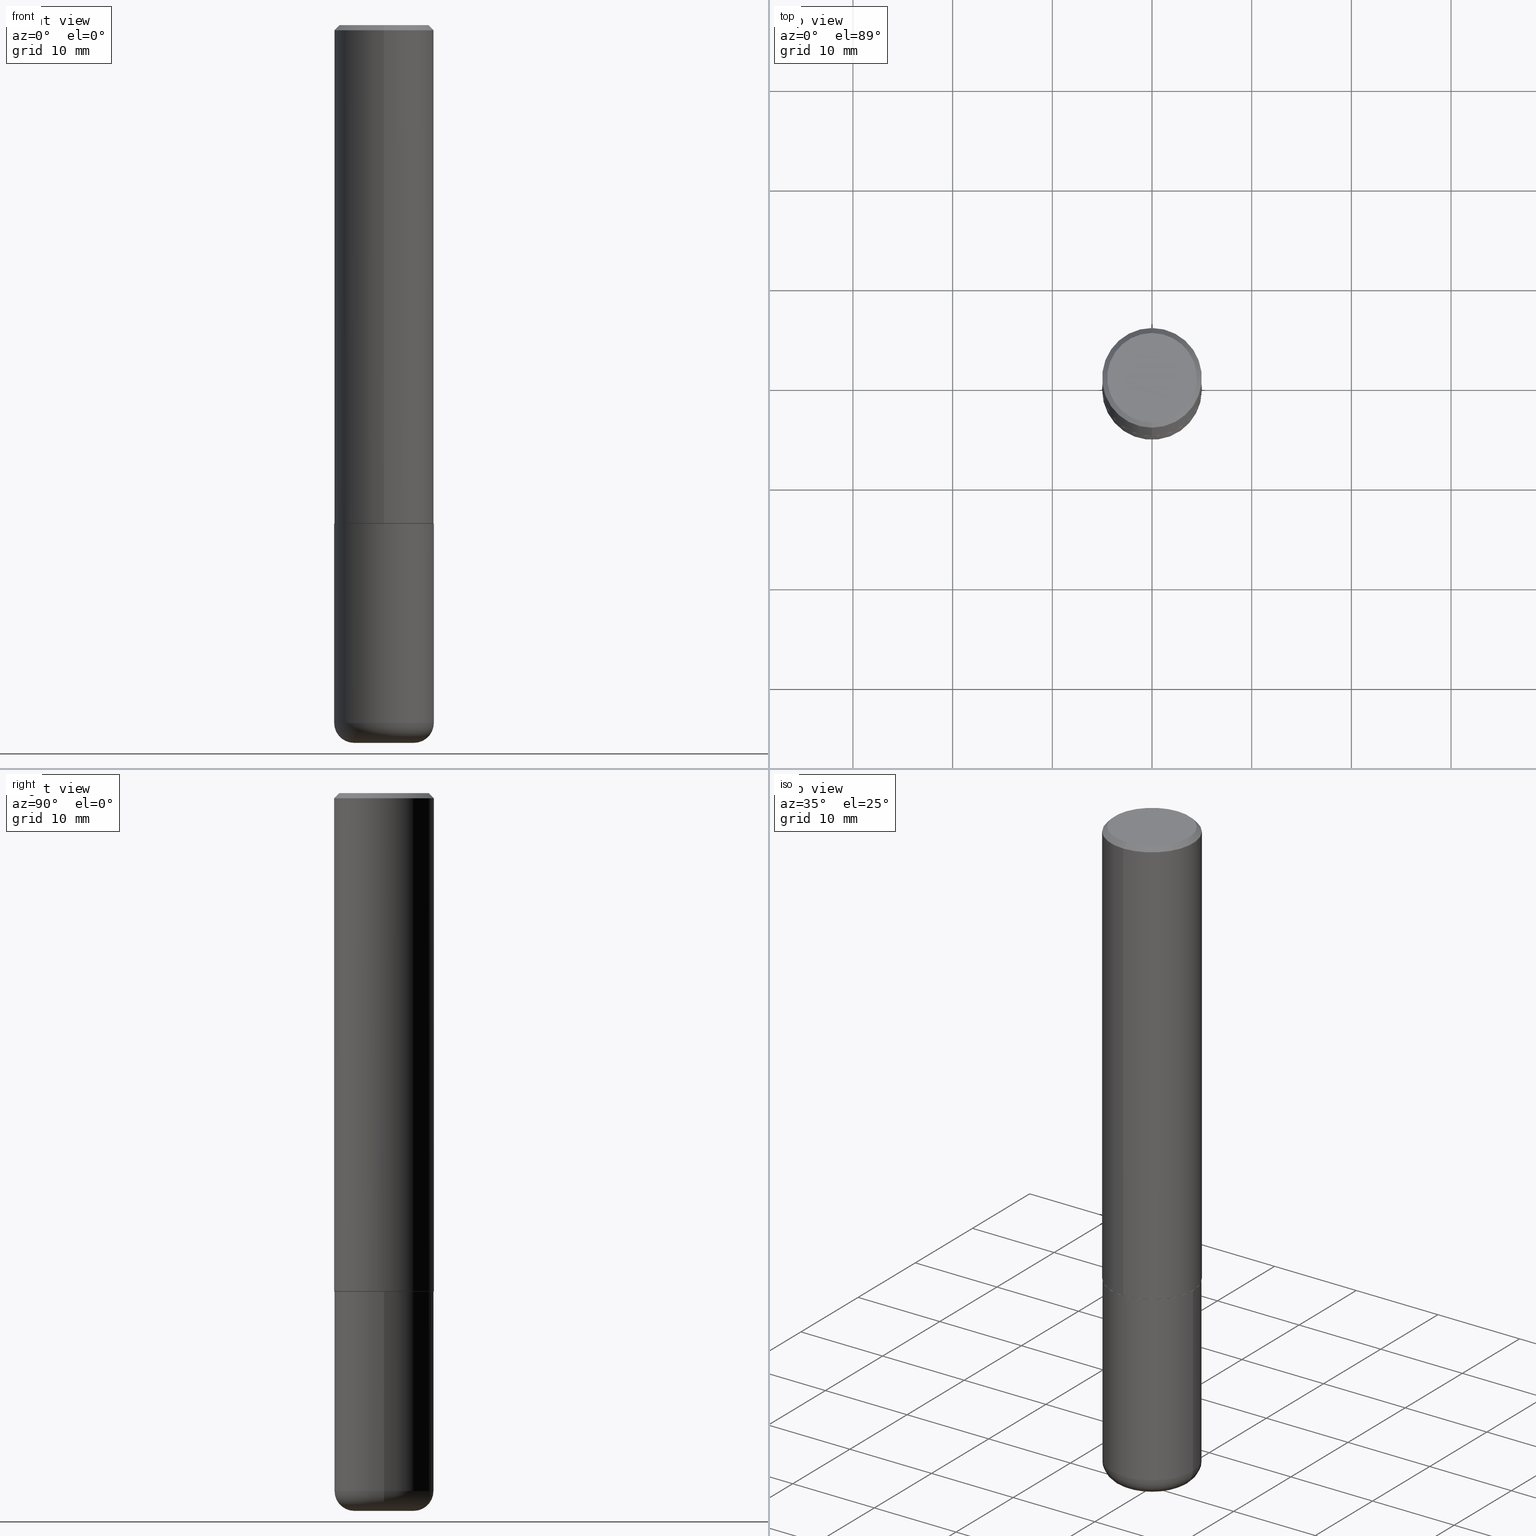
[diagram: canonical four-view strip — front | top / right | iso, engineering-drawing reading convention]
A machine part, canonical four-view strip (front | top / right | iso — engineering-drawing reading convention). The complete STEP part file that produces these views, byte-faithful:
ISO-10303-21;
HEADER;
FILE_DESCRIPTION (( 'STEP AP203' ),
    '1' );
FILE_NAME ('46459.STEP',
    '2024-03-04T21:38:46',
    ( '' ),
    ( '' ),
    'SwSTEP 2.0',
    'SolidWorks 2023',
    '' );
FILE_SCHEMA (( 'CONFIG_CONTROL_DESIGN' ));
ENDSEC;

DATA;
#1 = DIRECTION ( 'NONE',  ( 2.445768211810956051E-29, -3.491052572945861549E-15, -1.000000000000000000 ) ) ;
#2 = VERTEX_POINT ( 'NONE', #366 ) ;
#3 = CIRCLE ( 'NONE', #124, 0.1768499999999999794 ) ;
#4 = FACE_OUTER_BOUND ( 'NONE', #242, .T. ) ;
#5 = APPLICATION_PROTOCOL_DEFINITION ( 'international standard', 'config_control_design', 1994, #47 ) ;
#6 = ORIENTED_EDGE ( 'NONE', *, *, #323, .F. ) ;
#7 = CONICAL_SURFACE ( 'NONE', #244, 0.1968500000000000250, 0.7853981633974469467 ) ;
#8 = DIRECTION ( 'NONE',  ( 2.438088387897960049E-29, -3.491481338843145188E-15, -1.000000000000000000 ) ) ;
#9 = COORDINATED_UNIVERSAL_TIME_OFFSET ( 5, 0, .BEHIND. ) ;
#10 = CARTESIAN_POINT ( 'NONE',  ( 4.814494724949867130E-29, -6.872136989843927252E-15, -1.968499999999999694 ) ) ;
#11 = AXIS2_PLACEMENT_3D ( 'NONE', #319, #57, #378 ) ;
#12 = COORDINATED_UNIVERSAL_TIME_OFFSET ( 5, 0, .BEHIND. ) ;
#13 = DIRECTION ( 'NONE',  ( -1.000000000000000000, 6.982962677686265922E-15, -4.876176775795935793E-29 ) ) ;
#14 = DIRECTION ( 'NONE',  ( -2.445468806185136597E-29, 3.491481338843145583E-15, 1.000000000000000000 ) ) ;
#15 = DIRECTION ( 'NONE',  ( -4.851104656540957175E-15, -0.7071067811865490160, -0.7071067811865460184 ) ) ;
#16 = AXIS2_PLACEMENT_3D ( 'NONE', #310, #397, #372 ) ;
#17 = PLANE ( 'NONE',  #254 ) ;
#18 = DIRECTION ( 'NONE',  ( -2.445468806185136597E-29, 3.491481338843145583E-15, 1.000000000000000000 ) ) ;
#19 = DIRECTION ( 'NONE',  ( 2.445768211810956331E-29, -3.491052572945861944E-15, -1.000000000000000000 ) ) ;
#20 = CARTESIAN_POINT ( 'NONE',  ( -0.1181500000000000050, -8.782667179417266182E-15, -2.755900000000000016 ) ) ;
#21 = EDGE_LOOP ( 'NONE', ( #63, #65, #101, #384 ) ) ;
#22 = CYLINDRICAL_SURFACE ( 'NONE', #139, 0.1968500000000001082 ) ;
#23 = CIRCLE ( 'NONE', #75, 0.1958499999999999963 ) ;
#24 = VECTOR ( 'NONE', #243, 39.37007874015748143 ) ;
#25 = DIRECTION ( 'NONE',  ( -4.937700262164969294E-15, -0.7071067811866054154, 0.7071067811864896191 ) ) ;
#26 = ORIENTED_EDGE ( 'NONE', *, *, #415, .F. ) ;
#27 = VERTEX_POINT ( 'NONE', #72 ) ;
#28 = CONICAL_SURFACE ( 'NONE', #265, 0.1958499999999999963, 0.7853981633975336552 ) ;
#29 = ORIENTED_EDGE ( 'NONE', *, *, #79, .F. ) ;
#30 = LOCAL_TIME ( 16, 38, 46.00000000000000000, #120 ) ;
#31 = DIRECTION ( 'NONE',  ( -2.445768211810956331E-29, 3.491052572945861944E-15, 1.000000000000000000 ) ) ;
#32 = CARTESIAN_POINT ( 'NONE',  ( -0.1968499999999999694, 1.398703375343756999E-15, -9.682923725166782276E-30 ) ) ;
#33 = DIRECTION ( 'NONE',  ( -2.445768211810956331E-29, 3.491052572945861944E-15, 1.000000000000000000 ) ) ;
#34 = SHAPE_DEFINITION_REPRESENTATION ( #324, #356 ) ;
#35 = CARTESIAN_POINT ( 'NONE',  ( -1.367613240424807079E-15, -0.1958500000000068797, -1.968499999999999028 ) ) ;
#36 = ADVANCED_FACE ( 'NONE', ( #204 ), #365, .F. ) ;
#37 = CC_DESIGN_APPROVAL ( #392, ( #172 ) ) ;
#38 = CARTESIAN_POINT ( 'NONE',  ( -9.377267356501713356E-46, 1.338496966884566499E-31, 3.834078516196907338E-17 ) ) ;
#39 = EDGE_LOOP ( 'NONE', ( #170, #330, #110, #168 ) ) ;
#40 = COORDINATED_UNIVERSAL_TIME_OFFSET ( 5, 0, .BEHIND. ) ;
#41 = PLANE ( 'NONE',  #288 ) ;
#42 = ADVANCED_FACE ( 'NONE', ( #77 ), #28, .T. ) ;
#43 = VECTOR ( 'NONE', #379, 39.37007874015748143 ) ;
#44 = LOCAL_TIME ( 16, 38, 46.00000000000000000, #9 ) ;
#45 = CC_DESIGN_DATE_AND_TIME_ASSIGNMENT ( #360, #304, ( #172 ) ) ;
#46 = CARTESIAN_POINT ( 'NONE',  ( 4.891536423621923102E-31, -6.982105145891738778E-17, -0.02000000000000004205 ) ) ;
#47 = APPLICATION_CONTEXT ( 'configuration controlled 3d designs of mechanical parts and assemblies' ) ;
#48 = PERSON_AND_ORGANIZATION ( #86, #61 ) ;
#49 = DIRECTION ( 'NONE',  ( -6.982962677686265922E-15, -1.000000000000000000, 3.491052572945862338E-15 ) ) ;
#50 = DIRECTION ( 'NONE',  ( -2.445768211810956331E-29, 3.491052572945861549E-15, 1.000000000000000000 ) ) ;
#51 = CALENDAR_DATE ( 2024, 4, 3 ) ;
#52 = CARTESIAN_POINT ( 'NONE',  ( 6.739467482965618232E-29, -9.622173421717824390E-15, -2.755900000000000016 ) ) ;
#53 = DIRECTION ( 'NONE',  ( -6.982962677686265922E-15, -1.000000000000000000, 4.184602492209747448E-15 ) ) ;
#54 = DIMENSIONAL_EXPONENTS ( 1.000000000000000000, 0.000000000000000000, 0.000000000000000000, 0.000000000000000000, 0.000000000000000000, 0.000000000000000000, 0.000000000000000000 ) ;
#55 = CARTESIAN_POINT ( 'NONE',  ( -1.350489030861325429E-15, -0.1968500000000000805, -0.01999999999999935510 ) ) ;
#56 = DIRECTION ( 'NONE',  ( -2.445468806185136597E-29, 3.491481338843145583E-15, 1.000000000000000000 ) ) ;
#57 = DIRECTION ( 'NONE',  ( -2.445468806185136597E-29, 3.491481338843145583E-15, 1.000000000000000000 ) ) ;
#58 = ORIENTED_EDGE ( 'NONE', *, *, #401, .F. ) ;
#59 = EDGE_CURVE ( 'NONE', #418, #262, #305, .T. ) ;
#60 = CC_DESIGN_PERSON_AND_ORGANIZATION_ASSIGNMENT ( #402, #398, ( #134 ) ) ;
#61 = ORGANIZATION ( 'UNSPECIFIED', 'UNSPECIFIED', '' ) ;
#62 = ORIENTED_EDGE ( 'NONE', *, *, #328, .F. ) ;
#63 = ORIENTED_EDGE ( 'NONE', *, *, #232, .F. ) ;
#64 = CALENDAR_DATE ( 2024, 4, 3 ) ;
#65 = ORIENTED_EDGE ( 'NONE', *, *, #394, .T. ) ;
#66 = DIRECTION ( 'NONE',  ( -2.445768211810956331E-29, 3.491052572945861944E-15, 1.000000000000000000 ) ) ;
#67 = CIRCLE ( 'NONE', #380, 0.1968500000000002470 ) ;
#68 = ORIENTED_EDGE ( 'NONE', *, *, #210, .T. ) ;
#69 = AXIS2_PLACEMENT_3D ( 'NONE', #405, #247, #271 ) ;
#70 = ORIENTED_EDGE ( 'NONE', *, *, #85, .F. ) ;
#71 = ADVANCED_FACE ( 'NONE', ( #298 ), #335, .F. ) ;
#72 = CARTESIAN_POINT ( 'NONE',  ( -1.281884050883610492E-15, -0.1768499999999999794, 6.557334326874447708E-16 ) ) ;
#73 = PRODUCT_DEFINITION ( 'UNKNOWN', '', #134, #81 ) ;
#74 = DIRECTION ( 'NONE',  ( -1.000000000000000000, 6.982962677686265922E-15, -4.876176775795935793E-29 ) ) ;
#75 = AXIS2_PLACEMENT_3D ( 'NONE', #241, #66, #103 ) ;
#76 =( CONVERSION_BASED_UNIT ( 'INCH', #111 ) LENGTH_UNIT ( ) NAMED_UNIT ( #54 ) );
#77 = FACE_OUTER_BOUND ( 'NONE', #292, .T. ) ;
#78 = LINE ( 'NONE', #153, #308 ) ;
#79 = EDGE_CURVE ( 'NONE', #264, #233, #92, .T. ) ;
#80 = PERSON_AND_ORGANIZATION ( #86, #61 ) ;
#81 = DESIGN_CONTEXT ( 'detailed design', #307, 'design' ) ;
#82 = AXIS2_PLACEMENT_3D ( 'NONE', #203, #56, #200 ) ;
#83 = VECTOR ( 'NONE', #223, 39.37007874015748143 ) ;
#84 = DIRECTION ( 'NONE',  ( -2.445768211810956051E-29, 3.491052572945861549E-15, 1.000000000000000000 ) ) ;
#85 = EDGE_CURVE ( 'NONE', #27, #147, #133, .T. ) ;
#86 = PERSON ( 'UNSPECIFIED', 'UNSPECIFIED', 'UNSPECIFIED', ('UNSPECIFIED'), ('UNSPECIFIED'), ('UNSPECIFIED') ) ;
#87 = CARTESIAN_POINT ( 'NONE',  ( 1.398703375343782834E-15, 0.1968499999999934191, -1.967500000000000471 ) ) ;
#88 = CARTESIAN_POINT ( 'NONE',  ( 6.739467482965618232E-29, -9.622173421717824390E-15, -2.755900000000000016 ) ) ;
#89 = APPROVAL_DATE_TIME ( #182, #269 ) ;
#90 = CARTESIAN_POINT ( 'NONE',  ( 0.000000000000000000, 0.000000000000000000, 0.000000000000000000 ) ) ;
#91 = CARTESIAN_POINT ( 'NONE',  ( 1.398703375343757788E-15, 0.1968500000000001082, -6.872136989843933563E-16 ) ) ;
#92 = CIRCLE ( 'NONE', #338, 0.1968500000000000250 ) ;
#93 = CARTESIAN_POINT ( 'NONE',  ( 4.891536423621923102E-31, -6.982105145891738778E-17, -0.02000000000000004205 ) ) ;
#94 = ORIENTED_EDGE ( 'NONE', *, *, #251, .T. ) ;
#95 = FACE_OUTER_BOUND ( 'NONE', #371, .T. ) ;
#96 = CARTESIAN_POINT ( 'NONE',  ( 4.814494724949867130E-29, -6.872136989843927252E-15, -1.968499999999999694 ) ) ;
#97 = EDGE_LOOP ( 'NONE', ( #62, #171, #94, #26 ) ) ;
#98 = AXIS2_PLACEMENT_3D ( 'NONE', #367, #8, #74 ) ;
#99 = AXIS2_PLACEMENT_3D ( 'NONE', #284, #162, #121 ) ;
#100 = ORIENTED_EDGE ( 'NONE', *, *, #114, .F. ) ;
#101 = ORIENTED_EDGE ( 'NONE', *, *, #268, .T. ) ;
#102 = ORIENTED_EDGE ( 'NONE', *, *, #377, .T. ) ;
#103 = DIRECTION ( 'NONE',  ( -6.982962677686265922E-15, -1.000000000000000000, 4.184602492209747448E-15 ) ) ;
#104 = CIRCLE ( 'NONE', #375, 0.1968500000000000250 ) ;
#105 = EDGE_LOOP ( 'NONE', ( #174, #199 ) ) ;
#106 = CARTESIAN_POINT ( 'NONE',  ( 4.812048956738055591E-29, -6.868645937270982279E-15, -1.967499999999999805 ) ) ;
#107 = ADVANCED_FACE ( 'NONE', ( #4 ), #213, .T. ) ;
#108 = EDGE_CURVE ( 'NONE', #416, #262, #202, .T. ) ;
#109 = DATE_AND_TIME ( #64, #231 ) ;
#110 = ORIENTED_EDGE ( 'NONE', *, *, #108, .F. ) ;
#111 = LENGTH_MEASURE_WITH_UNIT ( LENGTH_MEASURE( 0.02539999999999999897 ), #395 );
#112 = ORIENTED_EDGE ( 'NONE', *, *, #140, .T. ) ;
#113 = APPROVAL_ROLE ( '' ) ;
#114 = EDGE_CURVE ( 'NONE', #27, #264, #138, .T. ) ;
#115 = CARTESIAN_POINT ( 'NONE',  ( 4.891536423621923102E-31, -6.982105145891738778E-17, -0.02000000000000004205 ) ) ;
#116 = SECURITY_CLASSIFICATION_LEVEL ( 'unclassified' ) ;
#117 = DIRECTION ( 'NONE',  ( 6.982962677686265133E-15, 1.000000000000000000, -3.491137977679279424E-15 ) ) ;
#118 = CC_DESIGN_APPROVAL ( #142, ( #73 ) ) ;
#119 = DIRECTION ( 'NONE',  ( 1.000000000000000000, -6.982962677686270655E-15, 4.883557194083114022E-29 ) ) ;
#120 = COORDINATED_UNIVERSAL_TIME_OFFSET ( 5, 0, .BEHIND. ) ;
#121 = DIRECTION ( 'NONE',  ( 1.000000000000000000, -6.982962677686266711E-15, 4.876176775795935793E-29 ) ) ;
#122 = FACE_OUTER_BOUND ( 'NONE', #39, .T. ) ;
#123 = CIRCLE ( 'NONE', #183, 0.1968499999999999694 ) ;
#124 = AXIS2_PLACEMENT_3D ( 'NONE', #38, #209, #333 ) ;
#125 = CARTESIAN_POINT ( 'NONE',  ( 1.374596203102542003E-15, 0.1968499999999999417, -0.02000000000000072900 ) ) ;
#126 = CC_DESIGN_PERSON_AND_ORGANIZATION_ASSIGNMENT ( #80, #191, ( #172 ) ) ;
#127 = ORIENTED_EDGE ( 'NONE', *, *, #268, .F. ) ;
#128 = LINE ( 'NONE', #91, #83 ) ;
#129 = VERTEX_POINT ( 'NONE', #350 ) ;
#130 = MANIFOLD_SOLID_BREP ( 'Body-Move/Copy2[2]', #315 ) ;
#131 = MANIFOLD_SOLID_BREP ( 'Body-Move/Copy2[1]', #299 ) ;
#132 = EDGE_LOOP ( 'NONE', ( #214, #68, #102, #166 ) ) ;
#133 = CIRCLE ( 'NONE', #368, 0.1768499999999999794 ) ;
#134 = PRODUCT_DEFINITION_FORMATION_WITH_SPECIFIED_SOURCE ( 'ANY', '', #353, .NOT_KNOWN. ) ;
#135 = ORIENTED_EDGE ( 'NONE', *, *, #394, .F. ) ;
#136 = ORIENTED_EDGE ( 'NONE', *, *, #401, .T. ) ;
#137 = COORDINATED_UNIVERSAL_TIME_OFFSET ( 5, 0, .BEHIND. ) ;
#138 = LINE ( 'NONE', #55, #355 ) ;
#139 = AXIS2_PLACEMENT_3D ( 'NONE', #90, #250, #354 ) ;
#140 = EDGE_CURVE ( 'NONE', #382, #341, #67, .T. ) ;
#141 = CIRCLE ( 'NONE', #376, 0.1968500000000002470 ) ;
#142 = APPROVAL ( #189, 'UNSPECIFIED' ) ;
#143 = DIRECTION ( 'NONE',  ( -6.982962677686265922E-15, -1.000000000000000000, 4.163344669033670112E-15 ) ) ;
#144 = APPROVAL_STATUS ( 'not_yet_approved' ) ;
#145 = CARTESIAN_POINT ( 'NONE',  ( 0.1968499999999999694, -1.374596203102541411E-15, 9.598753983154298056E-30 ) ) ;
#146 = UNCERTAINTY_MEASURE_WITH_UNIT (LENGTH_MEASURE( 1.000000000000000082E-05 ), #76, 'distance_accuracy_value', 'NONE');
#147 = VERTEX_POINT ( 'NONE', #163 ) ;
#148 = AXIS2_PLACEMENT_3D ( 'NONE', #358, #149, #408 ) ;
#149 = DIRECTION ( 'NONE',  ( -2.445768211810956331E-29, 3.491052572945861944E-15, 1.000000000000000000 ) ) ;
#150 = CIRCLE ( 'NONE', #160, 0.07869999999999993667 ) ;
#151 = CALENDAR_DATE ( 2024, 4, 3 ) ;
#152 = LINE ( 'NONE', #348, #261 ) ;
#153 = CARTESIAN_POINT ( 'NONE',  ( 1.391597947986204111E-15, 0.1958499999999931407, -1.968500000000000583 ) ) ;
#154 = EDGE_CURVE ( 'NONE', #361, #418, #123, .T. ) ;
#155 = DATE_AND_TIME ( #151, #357 ) ;
#156 = DIRECTION ( 'NONE',  ( -6.982962677686265922E-15, -1.000000000000000000, 3.491052572945861549E-15 ) ) ;
#157 = CARTESIAN_POINT ( 'NONE',  ( 4.812048956738055591E-29, -6.868645937270982279E-15, -1.967499999999999805 ) ) ;
#158 = CC_DESIGN_PERSON_AND_ORGANIZATION_ASSIGNMENT ( #309, #347, ( #73 ) ) ;
#159 = EDGE_CURVE ( 'NONE', #129, #387, #411, .T. ) ;
#160 = AXIS2_PLACEMENT_3D ( 'NONE', #283, #312, #222 ) ;
#161 = DATE_AND_TIME ( #51, #351 ) ;
#162 = DIRECTION ( 'NONE',  ( -2.445468806185136597E-29, 3.491481338843145583E-15, 1.000000000000000000 ) ) ;
#163 = CARTESIAN_POINT ( 'NONE',  ( 1.304766576325679099E-15, 0.1768499999999999794, -5.790518623635066240E-16 ) ) ;
#164 = DIRECTION ( 'NONE',  ( -2.445768211810956331E-29, 3.491052572945861944E-15, 1.000000000000000000 ) ) ;
#165 = CARTESIAN_POINT ( 'NONE',  ( 0.000000000000000000, 0.000000000000000000, 0.000000000000000000 ) ) ;
#166 = ORIENTED_EDGE ( 'NONE', *, *, #322, .F. ) ;
#167 = AXIS2_PLACEMENT_3D ( 'NONE', #165, #409, #317 ) ;
#168 = ORIENTED_EDGE ( 'NONE', *, *, #377, .F. ) ;
#169 = EDGE_CURVE ( 'NONE', #147, #233, #188, .T. ) ;
#170 = ORIENTED_EDGE ( 'NONE', *, *, #154, .T. ) ;
#171 = ORIENTED_EDGE ( 'NONE', *, *, #159, .T. ) ;
#172 = SECURITY_CLASSIFICATION ( '', '', #116 ) ;
#173 = ORIENTED_EDGE ( 'NONE', *, *, #79, .T. ) ;
#174 = ORIENTED_EDGE ( 'NONE', *, *, #400, .F. ) ;
#175 =( NAMED_UNIT ( * ) SI_UNIT ( $, .STERADIAN. ) SOLID_ANGLE_UNIT ( ) );
#176 = ORIENTED_EDGE ( 'NONE', *, *, #85, .T. ) ;
#177 = APPROVAL_ROLE ( '' ) ;
#178 = APPROVAL_PERSON_ORGANIZATION ( #373, #269, #113 ) ;
#179 = ORIENTED_EDGE ( 'NONE', *, *, #322, .T. ) ;
#180 = CALENDAR_DATE ( 2024, 4, 3 ) ;
#181 = DIRECTION ( 'NONE',  ( -6.982962677686265922E-15, -1.000000000000000000, 4.184602492209747448E-15 ) ) ;
#182 = DATE_AND_TIME ( #311, #30 ) ;
#183 = AXIS2_PLACEMENT_3D ( 'NONE', #407, #221, #190 ) ;
#184 = AXIS2_PLACEMENT_3D ( 'NONE', #388, #390, #393 ) ;
#185 = ADVANCED_FACE ( 'NONE', ( #95 ), #22, .T. ) ;
#186 = DIRECTION ( 'NONE',  ( 2.445768211810956331E-29, -3.491052572945861944E-15, -1.000000000000000000 ) ) ;
#187 = PRODUCT_RELATED_PRODUCT_CATEGORY ( 'detail', '', ( #353 ) ) ;
#188 = LINE ( 'NONE', #314, #43 ) ;
#189 = APPROVAL_STATUS ( 'not_yet_approved' ) ;
#190 = DIRECTION ( 'NONE',  ( 1.000000000000000000, -6.982962677686269866E-15, 0.000000000000000000 ) ) ;
#191 = PERSON_AND_ORGANIZATION_ROLE ( 'classification_officer' ) ;
#192 = FACE_OUTER_BOUND ( 'NONE', #21, .T. ) ;
#193 = DIRECTION ( 'NONE',  ( -6.982962677686265133E-15, -1.000000000000000000, 3.491137977679279424E-15 ) ) ;
#194 = EDGE_CURVE ( 'NONE', #233, #264, #104, .T. ) ;
#195 = DIRECTION ( 'NONE',  ( 1.000000000000000000, -6.982962677686269866E-15, 0.000000000000000000 ) ) ;
#196 = CARTESIAN_POINT ( 'NONE',  ( -9.377267356501713356E-46, 1.338496966884566499E-31, 3.834078516196907338E-17 ) ) ;
#197 = LINE ( 'NONE', #320, #386 ) ;
#198 = ORIENTED_EDGE ( 'NONE', *, *, #140, .F. ) ;
#199 = ORIENTED_EDGE ( 'NONE', *, *, #159, .F. ) ;
#200 = DIRECTION ( 'NONE',  ( 1.000000000000000000, -6.982962677686267499E-15, 0.000000000000000000 ) ) ;
#201 = ORIENTED_EDGE ( 'NONE', *, *, #169, .F. ) ;
#202 = CIRCLE ( 'NONE', #82, 0.1968500000000000250 ) ;
#203 = CARTESIAN_POINT ( 'NONE',  ( 4.813905344975441835E-29, -6.872981015512731707E-15, -1.968500000000000139 ) ) ;
#204 = FACE_OUTER_BOUND ( 'NONE', #227, .T. ) ;
#205 = ADVANCED_FACE ( 'NONE', ( #403 ), #332, .T. ) ;
#206 = LINE ( 'NONE', #145, #24 ) ;
#207 = DIRECTION ( 'NONE',  ( -2.445468806185136877E-29, 3.491481338843145188E-15, 1.000000000000000000 ) ) ;
#208 = PERSON_AND_ORGANIZATION ( #86, #61 ) ;
#209 = DIRECTION ( 'NONE',  ( -2.445768211810956331E-29, 3.491052572945861944E-15, 1.000000000000000000 ) ) ;
#210 = EDGE_CURVE ( 'NONE', #418, #361, #272, .T. ) ;
#211 = TOROIDAL_SURFACE ( 'NONE', #280, 0.1181500000000000050, 0.07869999999999993667 ) ;
#212 = DIRECTION ( 'NONE',  ( -6.982962677686265133E-15, -1.000000000000000000, 3.491137977679279424E-15 ) ) ;
#213 = CYLINDRICAL_SURFACE ( 'NONE', #148, 0.1968500000000001082 ) ;
#214 = ORIENTED_EDGE ( 'NONE', *, *, #59, .F. ) ;
#215 = FACE_OUTER_BOUND ( 'NONE', #329, .T. ) ;
#216 = CARTESIAN_POINT ( 'NONE',  ( -1.350489030861325429E-15, -0.1968500000000000805, -0.01999999999999935510 ) ) ;
#217 = AXIS2_PLACEMENT_3D ( 'NONE', #115, #19, #245 ) ;
#218 = ADVANCED_FACE ( 'NONE', ( #286 ), #410, .T. ) ;
#219 = PERSON_AND_ORGANIZATION_ROLE ( 'design_owner' ) ;
#220 = CARTESIAN_POINT ( 'NONE',  ( 0.1181500000000000189, -1.072199004345341266E-14, -2.834600000000000009 ) ) ;
#221 = DIRECTION ( 'NONE',  ( -2.445468806185136597E-29, 3.491481338843145583E-15, 1.000000000000000000 ) ) ;
#222 = DIRECTION ( 'NONE',  ( 1.000000000000000000, -6.982962677686275388E-15, 0.000000000000000000 ) ) ;
#223 = DIRECTION ( 'NONE',  ( -2.445768211810956331E-29, 3.491052572945861549E-15, 1.000000000000000000 ) ) ;
#224 = CC_DESIGN_SECURITY_CLASSIFICATION ( #172, ( #134 ) ) ;
#225 = DIRECTION ( 'NONE',  ( -2.445768211810956331E-29, 3.491052572945861944E-15, 1.000000000000000000 ) ) ;
#226 = CARTESIAN_POINT ( 'NONE',  ( -0.1968500000000000250, -6.848873843271521050E-15, -1.968500000000000139 ) ) ;
#227 = EDGE_LOOP ( 'NONE', ( #234, #179 ) ) ;
#228 = DIRECTION ( 'NONE',  ( -2.445768211810956331E-29, 3.491052572945861944E-15, 1.000000000000000000 ) ) ;
#229 = ORIENTED_EDGE ( 'NONE', *, *, #255, .F. ) ;
#230 = CC_DESIGN_PERSON_AND_ORGANIZATION_ASSIGNMENT ( #208, #219, ( #353 ) ) ;
#231 = LOCAL_TIME ( 16, 38, 46.00000000000000000, #137 ) ;
#232 = EDGE_CURVE ( 'NONE', #2, #418, #364, .T. ) ;
#233 = VERTEX_POINT ( 'NONE', #125 ) ;
#234 = ORIENTED_EDGE ( 'NONE', *, *, #108, .T. ) ;
#235 = PERSON_AND_ORGANIZATION ( #86, #61 ) ;
#236 = ORIENTED_EDGE ( 'NONE', *, *, #400, .T. ) ;
#237 = AXIS2_PLACEMENT_3D ( 'NONE', #279, #225, #53 ) ;
#238 = CIRCLE ( 'NONE', #69, 0.1968500000000000250 ) ;
#239 = MECHANICAL_CONTEXT ( 'NONE', #47, 'mechanical' ) ;
#240 = ADVANCED_FACE ( 'NONE', ( #122 ), #253, .T. ) ;
#241 = CARTESIAN_POINT ( 'NONE',  ( 4.814494724949867130E-29, -6.872136989843927252E-15, -1.968499999999999694 ) ) ;
#242 = EDGE_LOOP ( 'NONE', ( #112, #385, #29, #359 ) ) ;
#243 = DIRECTION ( 'NONE',  ( -2.445468806185136877E-29, 3.491481338843145188E-15, 1.000000000000000000 ) ) ;
#244 = AXIS2_PLACEMENT_3D ( 'NONE', #46, #186, #117 ) ;
#245 = DIRECTION ( 'NONE',  ( 6.982962677686265133E-15, 1.000000000000000000, -3.491137977679279424E-15 ) ) ;
#246 = CC_DESIGN_PERSON_AND_ORGANIZATION_ASSIGNMENT ( #48, #273, ( #134 ) ) ;
#247 = DIRECTION ( 'NONE',  ( -2.445468806185136597E-29, 3.491481338843145583E-15, 1.000000000000000000 ) ) ;
#248 = AXIS2_PLACEMENT_3D ( 'NONE', #88, #18, #195 ) ;
#249 = DIRECTION ( 'NONE',  ( -6.982962677686265922E-15, -1.000000000000000000, 4.184602492209747448E-15 ) ) ;
#250 = DIRECTION ( 'NONE',  ( -2.445768211810956331E-29, 3.491052572945861944E-15, 1.000000000000000000 ) ) ;
#251 = EDGE_CURVE ( 'NONE', #387, #382, #197, .T. ) ;
#252 = APPROVAL_DATE_TIME ( #161, #142 ) ;
#253 = CYLINDRICAL_SURFACE ( 'NONE', #167, 0.1968499999999999694 ) ;
#254 = AXIS2_PLACEMENT_3D ( 'NONE', #318, #84, #156 ) ;
#255 = EDGE_CURVE ( 'NONE', #341, #233, #128, .T. ) ;
#256 = ORIENTED_EDGE ( 'NONE', *, *, #114, .T. ) ;
#257 = FACE_OUTER_BOUND ( 'NONE', #97, .T. ) ;
#258 = EDGE_LOOP ( 'NONE', ( #6, #135 ) ) ;
#259 = EDGE_LOOP ( 'NONE', ( #270, #325, #413, #127 ) ) ;
#260 = AXIS2_PLACEMENT_3D ( 'NONE', #414, #1, #343 ) ;
#261 = VECTOR ( 'NONE', #50, 39.37007874015748143 ) ;
#262 = VERTEX_POINT ( 'NONE', #226 ) ;
#263 = ADVANCED_FACE ( 'NONE', ( #257 ), #300, .T. ) ;
#264 = VERTEX_POINT ( 'NONE', #216 ) ;
#265 = AXIS2_PLACEMENT_3D ( 'NONE', #10, #340, #181 ) ;
#266 = AXIS2_PLACEMENT_3D ( 'NONE', #96, #164, #249 ) ;
#267 = CIRCLE ( 'NONE', #326, 0.1181500000000000189 ) ;
#268 = EDGE_CURVE ( 'NONE', #293, #361, #150, .T. ) ;
#269 = APPROVAL ( #277, 'UNSPECIFIED' ) ;
#270 = ORIENTED_EDGE ( 'NONE', *, *, #323, .T. ) ;
#271 = DIRECTION ( 'NONE',  ( 1.000000000000000000, -6.982962677686267499E-15, 0.000000000000000000 ) ) ;
#272 = CIRCLE ( 'NONE', #248, 0.1968499999999999694 ) ;
#273 = PERSON_AND_ORGANIZATION_ROLE ( 'creator' ) ;
#274 = ADVANCED_FACE ( 'NONE', ( #192 ), #211, .T. ) ;
#275 = CARTESIAN_POINT ( 'NONE',  ( 6.931925878012387517E-29, -9.896953003084780885E-15, -2.834600000000000009 ) ) ;
#276 = FACE_OUTER_BOUND ( 'NONE', #287, .T. ) ;
#277 = APPROVAL_STATUS ( 'not_yet_approved' ) ;
#278 = CARTESIAN_POINT ( 'NONE',  ( 0.1968499999999999694, -1.099676962482036600E-14, -2.755900000000000016 ) ) ;
#279 = CARTESIAN_POINT ( 'NONE',  ( 4.814494724949867130E-29, -6.872136989843927252E-15, -1.968499999999999694 ) ) ;
#280 = AXIS2_PLACEMENT_3D ( 'NONE', #52, #14, #119 ) ;
#281 = ADVANCED_FACE ( 'NONE', ( #345 ), #17, .F. ) ;
#282 = DATE_TIME_ROLE ( 'creation_date' ) ;
#283 = CARTESIAN_POINT ( 'NONE',  ( 0.1181500000000000050, -1.044721046208645774E-14, -2.755900000000000016 ) ) ;
#284 = CARTESIAN_POINT ( 'NONE',  ( 0.000000000000000000, 0.000000000000000000, 0.000000000000000000 ) ) ;
#285 = DIRECTION ( 'NONE',  ( -1.000000000000000000, 7.105427357600997914E-15, 0.000000000000000000 ) ) ;
#286 = FACE_OUTER_BOUND ( 'NONE', #132, .T. ) ;
#287 = EDGE_LOOP ( 'NONE', ( #70, #256, #173, #201 ) ) ;
#288 = AXIS2_PLACEMENT_3D ( 'NONE', #275, #399, #13 ) ;
#289 = CARTESIAN_POINT ( 'NONE',  ( 4.891536423621923102E-31, -6.982105145891738778E-17, -0.02000000000000004205 ) ) ;
#290 = ADVANCED_FACE ( 'NONE', ( #215 ), #381, .T. ) ;
#291 = ORIENTED_EDGE ( 'NONE', *, *, #328, .T. ) ;
#292 = EDGE_LOOP ( 'NONE', ( #236, #291, #198, #303 ) ) ;
#293 = VERTEX_POINT ( 'NONE', #220 ) ;
#294 = CIRCLE ( 'NONE', #16, 0.1181500000000000189 ) ;
#295 = CARTESIAN_POINT ( 'NONE',  ( -1.374596203102495065E-15, -0.1968500000000071026, -1.967499999999998916 ) ) ;
#296 = ORIENTED_EDGE ( 'NONE', *, *, #352, .T. ) ;
#297 = CARTESIAN_POINT ( 'NONE',  ( 0.1968500000000000250, -8.247577218615273316E-15, -1.968500000000000139 ) ) ;
#298 = FACE_OUTER_BOUND ( 'NONE', #321, .T. ) ;
#299 = CLOSED_SHELL ( 'NONE', ( #240, #205, #36, #218, #274, #346 ) ) ;
#300 = CONICAL_SURFACE ( 'NONE', #266, 0.1958499999999999963, 0.7853981633975336552 ) ;
#301 = CARTESIAN_POINT ( 'NONE',  ( -0.1968499999999999694, -8.223470046374067391E-15, -2.755900000000000016 ) ) ;
#302 = ADVANCED_FACE ( 'NONE', ( #276 ), #7, .T. ) ;
#303 = ORIENTED_EDGE ( 'NONE', *, *, #251, .F. ) ;
#304 = DATE_TIME_ROLE ( 'classification_date' ) ;
#305 = LINE ( 'NONE', #32, #331 ) ;
#306 = PERSON_AND_ORGANIZATION ( #86, #61 ) ;
#307 = APPLICATION_CONTEXT ( 'configuration controlled 3d designs of mechanical parts and assemblies' ) ;
#308 = VECTOR ( 'NONE', #344, 39.37007874015748143 ) ;
#309 = PERSON_AND_ORGANIZATION ( #86, #61 ) ;
#310 = CARTESIAN_POINT ( 'NONE',  ( 6.931925878012387517E-29, -9.896953003084780885E-15, -2.834600000000000009 ) ) ;
#311 = CALENDAR_DATE ( 2024, 4, 3 ) ;
#312 = DIRECTION ( 'NONE',  ( -6.982962677686266711E-15, -1.000000000000000000, 3.491481338843145583E-15 ) ) ;
#313 = DIRECTION ( 'NONE',  ( -6.982962677686265922E-15, -1.000000000000000000, 4.163344669033670112E-15 ) ) ;
#314 = CARTESIAN_POINT ( 'NONE',  ( 1.374596203102542003E-15, 0.1968499999999999417, -0.02000000000000072900 ) ) ;
#315 = CLOSED_SHELL ( 'NONE', ( #42, #107, #302, #290, #185, #263, #281, #71 ) ) ;
#316 =( GEOMETRIC_REPRESENTATION_CONTEXT ( 3 ) GLOBAL_UNCERTAINTY_ASSIGNED_CONTEXT ( ( #146 ) ) GLOBAL_UNIT_ASSIGNED_CONTEXT ( ( #76, #337, #175 ) ) REPRESENTATION_CONTEXT ( 'NONE', 'WORKASPACE' ) );
#317 = DIRECTION ( 'NONE',  ( 1.000000000000000000, -6.982962677686266711E-15, 4.876176775795935793E-29 ) ) ;
#318 = CARTESIAN_POINT ( 'NONE',  ( 4.814494724949867690E-29, -6.872136989843929619E-15, -1.968500000000000139 ) ) ;
#319 = CARTESIAN_POINT ( 'NONE',  ( 6.739467482965618232E-29, -9.622173421717824390E-15, -2.755900000000000016 ) ) ;
#320 = CARTESIAN_POINT ( 'NONE',  ( -1.367613240424807079E-15, -0.1958500000000068797, -1.968499999999999028 ) ) ;
#321 = EDGE_LOOP ( 'NONE', ( #136, #176 ) ) ;
#322 = EDGE_CURVE ( 'NONE', #262, #416, #238, .T. ) ;
#323 = EDGE_CURVE ( 'NONE', #293, #2, #294, .T. ) ;
#324 = PRODUCT_DEFINITION_SHAPE ( 'NONE', 'NONE',  #73 ) ;
#325 = ORIENTED_EDGE ( 'NONE', *, *, #232, .T. ) ;
#326 = AXIS2_PLACEMENT_3D ( 'NONE', #334, #362, #370 ) ;
#327 = ORIENTED_EDGE ( 'NONE', *, *, #169, .T. ) ;
#328 = EDGE_CURVE ( 'NONE', #129, #341, #78, .T. ) ;
#329 = EDGE_LOOP ( 'NONE', ( #100, #58, #327, #391 ) ) ;
#330 = ORIENTED_EDGE ( 'NONE', *, *, #59, .T. ) ;
#331 = VECTOR ( 'NONE', #207, 39.37007874015748143 ) ;
#332 = TOROIDAL_SURFACE ( 'NONE', #11, 0.1181500000000000050, 0.07869999999999993667 ) ;
#333 = DIRECTION ( 'NONE',  ( -6.982962677686265922E-15, -1.000000000000000000, 3.491052572945862338E-15 ) ) ;
#334 = CARTESIAN_POINT ( 'NONE',  ( 6.931925878012387517E-29, -9.896953003084780885E-15, -2.834600000000000009 ) ) ;
#335 = PLANE ( 'NONE',  #260 ) ;
#336 = APPROVAL_DATE_TIME ( #109, #392 ) ;
#337 =( NAMED_UNIT ( * ) PLANE_ANGLE_UNIT ( ) SI_UNIT ( $, .RADIAN. ) );
#338 = AXIS2_PLACEMENT_3D ( 'NONE', #93, #404, #212 ) ;
#339 = AXIS2_PLACEMENT_3D ( 'NONE', #20, #406, #285 ) ;
#340 = DIRECTION ( 'NONE',  ( -2.445768211810956331E-29, 3.491052572945861944E-15, 1.000000000000000000 ) ) ;
#341 = VERTEX_POINT ( 'NONE', #87 ) ;
#342 = APPROVAL_ROLE ( '' ) ;
#343 = DIRECTION ( 'NONE',  ( 6.982962677686265922E-15, 1.000000000000000000, -3.491052572945861549E-15 ) ) ;
#344 = DIRECTION ( 'NONE',  ( 5.024295867788490741E-15, 0.7071067811866103003, 0.7071067811864847341 ) ) ;
#345 = FACE_OUTER_BOUND ( 'NONE', #105, .T. ) ;
#346 = ADVANCED_FACE ( 'NONE', ( #374 ), #41, .T. ) ;
#347 = PERSON_AND_ORGANIZATION_ROLE ( 'creator' ) ;
#348 = CARTESIAN_POINT ( 'NONE',  ( -1.374596203102542200E-15, -0.1968500000000001082, 6.872136989843933563E-16 ) ) ;
#349 = APPLICATION_PROTOCOL_DEFINITION ( 'international standard', 'config_control_design', 1994, #307 ) ;
#350 = CARTESIAN_POINT ( 'NONE',  ( 1.395150661665005404E-15, 0.1958499999999931407, -1.968500000000000583 ) ) ;
#351 = LOCAL_TIME ( 16, 38, 46.00000000000000000, #40 ) ;
#352 = EDGE_CURVE ( 'NONE', #382, #264, #152, .T. ) ;
#353 = PRODUCT ( '46459', '46459', '', ( #239 ) ) ;
#354 = DIRECTION ( 'NONE',  ( -6.982962677686265922E-15, -1.000000000000000000, 3.491052572945862338E-15 ) ) ;
#355 = VECTOR ( 'NONE', #15, 39.37007874015748143 ) ;
#356 = ADVANCED_BREP_SHAPE_REPRESENTATION ( '46459', ( #131, #130, #184 ), #316 ) ;
#357 = LOCAL_TIME ( 16, 38, 46.00000000000000000, #12 ) ;
#358 = CARTESIAN_POINT ( 'NONE',  ( 0.000000000000000000, 0.000000000000000000, 0.000000000000000000 ) ) ;
#359 = ORIENTED_EDGE ( 'NONE', *, *, #352, .F. ) ;
#360 = DATE_AND_TIME ( #180, #44 ) ;
#361 = VERTEX_POINT ( 'NONE', #278 ) ;
#362 = DIRECTION ( 'NONE',  ( -2.445468806185136597E-29, 3.491481338843145583E-15, 1.000000000000000000 ) ) ;
#363 = ORIENTED_EDGE ( 'NONE', *, *, #194, .F. ) ;
#364 = CIRCLE ( 'NONE', #339, 0.07869999999999993667 ) ;
#365 = PLANE ( 'NONE',  #98 ) ;
#366 = CARTESIAN_POINT ( 'NONE',  ( -0.1181500000000000189, -8.640458403579145034E-15, -2.834600000000000009 ) ) ;
#367 = CARTESIAN_POINT ( 'NONE',  ( 4.813905344975441835E-29, -6.872981015512731707E-15, -1.968500000000000139 ) ) ;
#368 = AXIS2_PLACEMENT_3D ( 'NONE', #196, #31, #49 ) ;
#369 = CC_DESIGN_APPROVAL ( #269, ( #134 ) ) ;
#370 = DIRECTION ( 'NONE',  ( 1.000000000000000000, -6.982962677686265922E-15, 0.000000000000000000 ) ) ;
#371 = EDGE_LOOP ( 'NONE', ( #229, #389, #296, #363 ) ) ;
#372 = DIRECTION ( 'NONE',  ( 1.000000000000000000, -6.982962677686265922E-15, 0.000000000000000000 ) ) ;
#373 = PERSON_AND_ORGANIZATION ( #86, #61 ) ;
#374 = FACE_OUTER_BOUND ( 'NONE', #258, .T. ) ;
#375 = AXIS2_PLACEMENT_3D ( 'NONE', #289, #228, #193 ) ;
#376 = AXIS2_PLACEMENT_3D ( 'NONE', #106, #33, #143 ) ;
#377 = EDGE_CURVE ( 'NONE', #361, #416, #206, .T. ) ;
#378 = DIRECTION ( 'NONE',  ( 1.000000000000000000, -6.982962677686270655E-15, 4.883557194083114022E-29 ) ) ;
#379 = DIRECTION ( 'NONE',  ( 4.937700262164540942E-15, 0.7071067811865441310, -0.7071067811865509034 ) ) ;
#380 = AXIS2_PLACEMENT_3D ( 'NONE', #157, #383, #313 ) ;
#381 = CONICAL_SURFACE ( 'NONE', #217, 0.1968500000000000250, 0.7853981633974469467 ) ;
#382 = VERTEX_POINT ( 'NONE', #295 ) ;
#383 = DIRECTION ( 'NONE',  ( -2.445768211810956331E-29, 3.491052572945861944E-15, 1.000000000000000000 ) ) ;
#384 = ORIENTED_EDGE ( 'NONE', *, *, #210, .F. ) ;
#385 = ORIENTED_EDGE ( 'NONE', *, *, #255, .T. ) ;
#386 = VECTOR ( 'NONE', #25, 39.37007874015748143 ) ;
#387 = VERTEX_POINT ( 'NONE', #35 ) ;
#388 = CARTESIAN_POINT ( 'NONE',  ( 0.000000000000000000, 0.000000000000000000, 0.000000000000000000 ) ) ;
#389 = ORIENTED_EDGE ( 'NONE', *, *, #415, .T. ) ;
#390 = DIRECTION ( 'NONE',  ( 0.000000000000000000, 0.000000000000000000, 1.000000000000000000 ) ) ;
#391 = ORIENTED_EDGE ( 'NONE', *, *, #194, .T. ) ;
#392 = APPROVAL ( #144, 'UNSPECIFIED' ) ;
#393 = DIRECTION ( 'NONE',  ( 1.000000000000000000, 0.000000000000000000, 0.000000000000000000 ) ) ;
#394 = EDGE_CURVE ( 'NONE', #2, #293, #267, .T. ) ;
#395 =( LENGTH_UNIT ( ) NAMED_UNIT ( * ) SI_UNIT ( $, .METRE. ) );
#396 = APPROVAL_PERSON_ORGANIZATION ( #235, #392, #177 ) ;
#397 = DIRECTION ( 'NONE',  ( -2.445468806185136597E-29, 3.491481338843145583E-15, 1.000000000000000000 ) ) ;
#398 = PERSON_AND_ORGANIZATION_ROLE ( 'design_supplier' ) ;
#399 = DIRECTION ( 'NONE',  ( 2.438088387897960049E-29, -3.491481338843145188E-15, -1.000000000000000000 ) ) ;
#400 = EDGE_CURVE ( 'NONE', #387, #129, #23, .T. ) ;
#401 = EDGE_CURVE ( 'NONE', #147, #27, #3, .T. ) ;
#402 = PERSON_AND_ORGANIZATION ( #86, #61 ) ;
#403 = FACE_OUTER_BOUND ( 'NONE', #259, .T. ) ;
#404 = DIRECTION ( 'NONE',  ( -2.445768211810956331E-29, 3.491052572945861944E-15, 1.000000000000000000 ) ) ;
#405 = CARTESIAN_POINT ( 'NONE',  ( 4.813905344975441835E-29, -6.872981015512731707E-15, -1.968500000000000139 ) ) ;
#406 = DIRECTION ( 'NONE',  ( 7.105427357601001859E-15, 1.000000000000000000, -3.491481338843145583E-15 ) ) ;
#407 = CARTESIAN_POINT ( 'NONE',  ( 6.739467482965618232E-29, -9.622173421717824390E-15, -2.755900000000000016 ) ) ;
#408 = DIRECTION ( 'NONE',  ( -6.982962677686265922E-15, -1.000000000000000000, 3.491052572945862338E-15 ) ) ;
#409 = DIRECTION ( 'NONE',  ( -2.445468806185136597E-29, 3.491481338843145583E-15, 1.000000000000000000 ) ) ;
#410 = CYLINDRICAL_SURFACE ( 'NONE', #99, 0.1968499999999999694 ) ;
#411 = CIRCLE ( 'NONE', #237, 0.1958499999999999963 ) ;
#412 = APPROVAL_PERSON_ORGANIZATION ( #306, #142, #342 ) ;
#413 = ORIENTED_EDGE ( 'NONE', *, *, #154, .F. ) ;
#414 = CARTESIAN_POINT ( 'NONE',  ( 1.234936949548815998E-15, 0.1768499999999999794, -5.982222549444910867E-16 ) ) ;
#415 = EDGE_CURVE ( 'NONE', #341, #382, #141, .T. ) ;
#416 = VERTEX_POINT ( 'NONE', #297 ) ;
#417 = CC_DESIGN_DATE_AND_TIME_ASSIGNMENT ( #155, #282, ( #73 ) ) ;
#418 = VERTEX_POINT ( 'NONE', #301 ) ;
ENDSEC;
END-ISO-10303-21;
